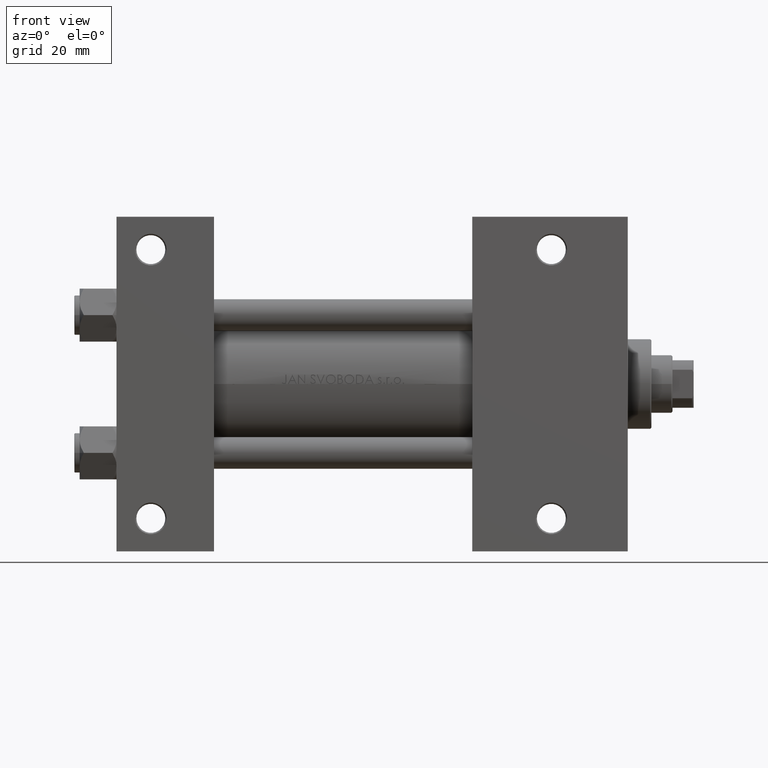
[diagram: clean part render]
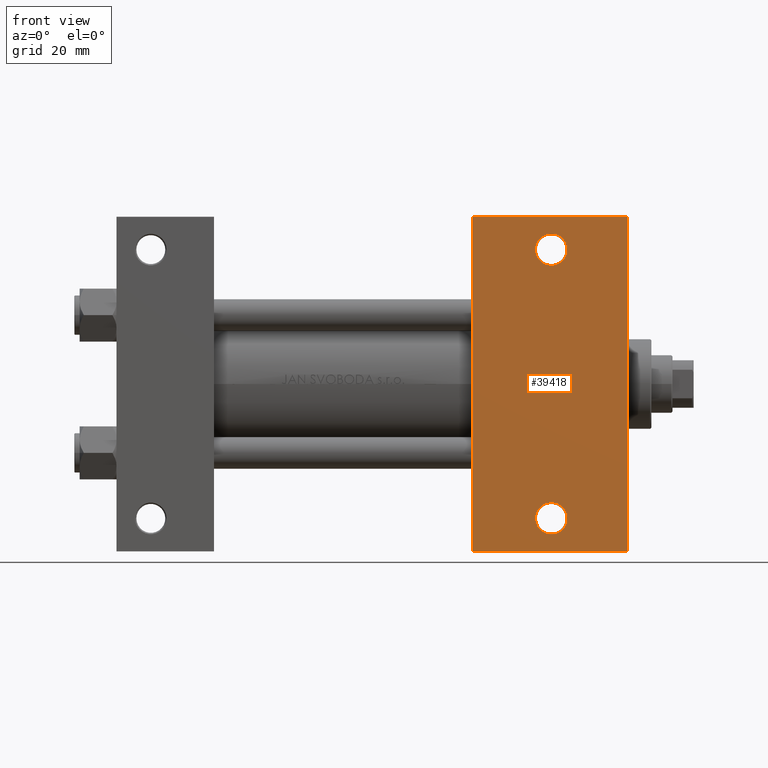
[diagram: same view with one face highlighted and labeled with its STEP entity id]
A machine part, front view. The second image highlights one B-rep face of the part: STEP entity #39418.
In plain terms, the highlighted planar face has unit normal (0, -1, 0).
Its self-contained STEP definition (entity closure, byte-faithful):
#287 = VERTEX_POINT ( 'NONE', #11212 ) ;
#582 = DIRECTION ( 'NONE',  ( -0.000000000000000000, -0.000000000000000000, 1.000000000000000000 ) ) ;
#1880 = DIRECTION ( 'NONE',  ( -1.000000000000000000, 0.000000000000000000, -0.000000000000000000 ) ) ;
#2021 = EDGE_LOOP ( 'NONE', ( #29792, #15840, #10687, #29818 ) ) ;
#4231 = AXIS2_PLACEMENT_3D ( 'NONE', #24313, #29041, #1880 ) ;
#4447 = LINE ( 'NONE', #20344, #40345 ) ;
#4836 = ORIENTED_EDGE ( 'NONE', *, *, #30268, .T. ) ;
#4924 = DIRECTION ( 'NONE',  ( -1.000000000000000000, 0.000000000000000000, 0.000000000000000000 ) ) ;
#5015 = VERTEX_POINT ( 'NONE', #28264 ) ;
#5536 = AXIS2_PLACEMENT_3D ( 'NONE', #42223, #8107, #23297 ) ;
#5608 = ORIENTED_EDGE ( 'NONE', *, *, #10927, .T. ) ;
#5851 = ORIENTED_EDGE ( 'NONE', *, *, #41043, .T. ) ;
#7259 = CARTESIAN_POINT ( 'NONE',  ( 165.0000000000000284, -51.00000000000000000, -37.50000000000000000 ) ) ;
#8107 = DIRECTION ( 'NONE',  ( -0.000000000000000000, -0.000000000000000000, 1.000000000000000000 ) ) ;
#8331 = AXIS2_PLACEMENT_3D ( 'NONE', #46765, #16136, #4924 ) ;
#9024 = LINE ( 'NONE', #24205, #38201 ) ;
#9131 = PLANE ( 'NONE',  #4231 ) ;
#9620 = FACE_BOUND ( 'NONE', #17099, .T. ) ;
#10019 = LINE ( 'NONE', #28927, #19637 ) ;
#10687 = ORIENTED_EDGE ( 'NONE', *, *, #35455, .T. ) ;
#10927 = EDGE_CURVE ( 'NONE', #5015, #49280, #38165, .T. ) ;
#11212 = CARTESIAN_POINT ( 'NONE',  ( 135.0000000000000284, 63.49999999999997158, -37.50000000000000000 ) ) ;
#11248 = VERTEX_POINT ( 'NONE', #48094 ) ;
#11996 = EDGE_CURVE ( 'NONE', #287, #14753, #9024, .T. ) ;
#14753 = VERTEX_POINT ( 'NONE', #33130 ) ;
#15784 = DIRECTION ( 'NONE',  ( 1.000000000000000000, 4.704334850106595794E-16, 0.000000000000000000 ) ) ;
#15840 = ORIENTED_EDGE ( 'NONE', *, *, #11996, .T. ) ;
#16136 = DIRECTION ( 'NONE',  ( -0.000000000000000000, -0.000000000000000000, 1.000000000000000000 ) ) ;
#17099 = EDGE_LOOP ( 'NONE', ( #4836, #37652 ) ) ;
#19424 = AXIS2_PLACEMENT_3D ( 'NONE', #7259, #21696, #22445 ) ;
#19637 = VECTOR ( 'NONE', #25201, 1000.000000000000000 ) ;
#20344 = CARTESIAN_POINT ( 'NONE',  ( 194.0000000000000000, 37.50000000000000000, -37.50000000000000000 ) ) ;
#21696 = DIRECTION ( 'NONE',  ( -0.000000000000000000, -0.000000000000000000, 1.000000000000000000 ) ) ;
#21961 = CIRCLE ( 'NONE', #29949, 5.999500000000018929 ) ;
#22060 = DIRECTION ( 'NONE',  ( 0.000000000000000000, -1.000000000000000000, 0.000000000000000000 ) ) ;
#22445 = DIRECTION ( 'NONE',  ( -1.000000000000000000, 0.000000000000000000, 0.000000000000000000 ) ) ;
#23297 = DIRECTION ( 'NONE',  ( -1.000000000000000000, 0.000000000000000000, 0.000000000000000000 ) ) ;
#24205 = CARTESIAN_POINT ( 'NONE',  ( 135.0000000000000284, 63.49999999999997158, -37.50000000000000000 ) ) ;
#24313 = CARTESIAN_POINT ( 'NONE',  ( 194.0000000000000000, 37.50000000000000000, -37.50000000000000000 ) ) ;
#24558 = FACE_OUTER_BOUND ( 'NONE', #2021, .T. ) ;
#25201 = DIRECTION ( 'NONE',  ( -1.000000000000000000, 4.704334850106595794E-16, -0.000000000000000000 ) ) ;
#25787 = VERTEX_POINT ( 'NONE', #46874 ) ;
#26040 = EDGE_CURVE ( 'NONE', #25787, #32359, #34561, .T. ) ;
#28264 = CARTESIAN_POINT ( 'NONE',  ( 159.0005000000000166, -51.00000000000000000, -37.50000000000000000 ) ) ;
#28846 = VECTOR ( 'NONE', #22060, 1000.000000000000000 ) ;
#28848 = EDGE_LOOP ( 'NONE', ( #5608, #5851 ) ) ;
#28927 = CARTESIAN_POINT ( 'NONE',  ( 135.0000000000000000, -63.50000000000000000, -37.50000000000000000 ) ) ;
#29041 = DIRECTION ( 'NONE',  ( 0.000000000000000000, 0.000000000000000000, -1.000000000000000000 ) ) ;
#29792 = ORIENTED_EDGE ( 'NONE', *, *, #38795, .F. ) ;
#29818 = ORIENTED_EDGE ( 'NONE', *, *, #31363, .T. ) ;
#29949 = AXIS2_PLACEMENT_3D ( 'NONE', #37691, #582, #33973 ) ;
#30268 = EDGE_CURVE ( 'NONE', #32359, #25787, #21961, .T. ) ;
#30988 = CARTESIAN_POINT ( 'NONE',  ( 159.0005000000000166, 51.00000000000000000, -37.50000000000000000 ) ) ;
#31363 = EDGE_CURVE ( 'NONE', #11248, #40442, #10019, .T. ) ;
#32359 = VERTEX_POINT ( 'NONE', #30988 ) ;
#33130 = CARTESIAN_POINT ( 'NONE',  ( 194.0000000000000284, 63.50000000000000000, -37.50000000000000000 ) ) ;
#33973 = DIRECTION ( 'NONE',  ( -1.000000000000000000, 0.000000000000000000, 0.000000000000000000 ) ) ;
#34561 = CIRCLE ( 'NONE', #8331, 5.999500000000018929 ) ;
#35062 = DIRECTION ( 'NONE',  ( 0.000000000000000000, -1.000000000000000000, 0.000000000000000000 ) ) ;
#35455 = EDGE_CURVE ( 'NONE', #14753, #11248, #4447, .T. ) ;
#37271 = CARTESIAN_POINT ( 'NONE',  ( 135.0000000000000000, -63.50000000000000000, -37.50000000000000000 ) ) ;
#37652 = ORIENTED_EDGE ( 'NONE', *, *, #26040, .T. ) ;
#37691 = CARTESIAN_POINT ( 'NONE',  ( 165.0000000000000284, 51.00000000000000000, -37.50000000000000000 ) ) ;
#38165 = CIRCLE ( 'NONE', #5536, 5.999500000000018929 ) ;
#38201 = VECTOR ( 'NONE', #15784, 1000.000000000000000 ) ;
#38795 = EDGE_CURVE ( 'NONE', #287, #40442, #40736, .T. ) ;
#39418 = ADVANCED_FACE ( 'NONE', ( #9620, #43737, #24558 ), #9131, .T. ) ;
#40345 = VECTOR ( 'NONE', #35062, 1000.000000000000000 ) ;
#40442 = VERTEX_POINT ( 'NONE', #37271 ) ;
#40736 = LINE ( 'NONE', #45912, #28846 ) ;
#41043 = EDGE_CURVE ( 'NONE', #49280, #5015, #41670, .T. ) ;
#41670 = CIRCLE ( 'NONE', #19424, 5.999500000000018929 ) ;
#42223 = CARTESIAN_POINT ( 'NONE',  ( 165.0000000000000284, -51.00000000000000000, -37.50000000000000000 ) ) ;
#43737 = FACE_BOUND ( 'NONE', #28848, .T. ) ;
#45526 = CARTESIAN_POINT ( 'NONE',  ( 170.9995000000000402, -51.00000000000000000, -37.50000000000000000 ) ) ;
#45912 = CARTESIAN_POINT ( 'NONE',  ( 135.0000000000000000, 37.50000000000000000, -37.50000000000000000 ) ) ;
#46765 = CARTESIAN_POINT ( 'NONE',  ( 165.0000000000000284, 51.00000000000000000, -37.50000000000000000 ) ) ;
#46874 = CARTESIAN_POINT ( 'NONE',  ( 170.9995000000000402, 51.00000000000000000, -37.50000000000000000 ) ) ;
#48094 = CARTESIAN_POINT ( 'NONE',  ( 194.0000000000000000, -63.50000000000002842, -37.50000000000000000 ) ) ;
#49280 = VERTEX_POINT ( 'NONE', #45526 ) ;